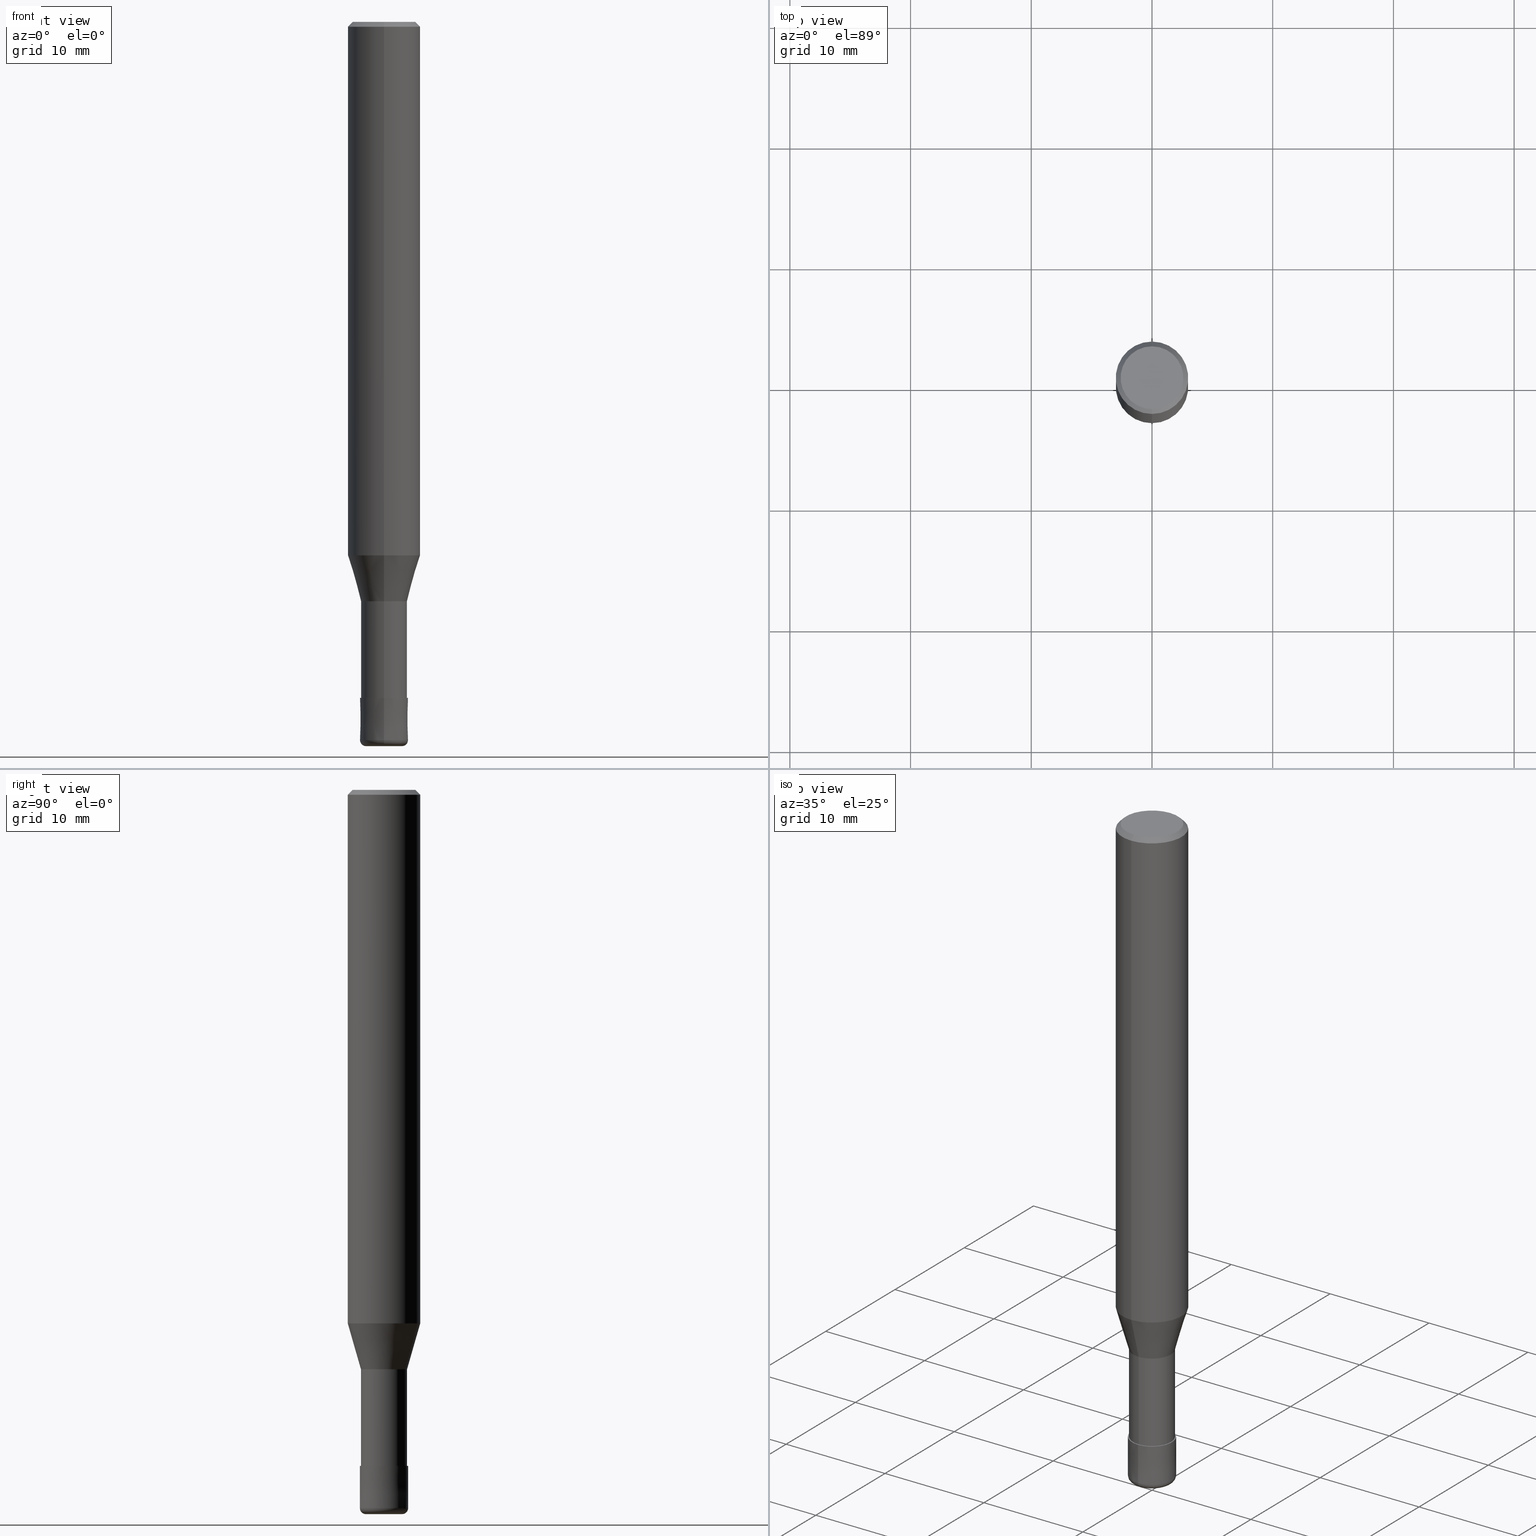
[diagram: canonical four-view strip — front | top / right | iso, engineering-drawing reading convention]
A machine part, canonical four-view strip (front | top / right | iso — engineering-drawing reading convention). The complete STEP part file that produces these views, byte-faithful:
ISO-10303-21;
HEADER;
FILE_DESCRIPTION(('no description'),'unknown implementation level');
FILE_NAME('CRRS4040-05-12-Huellk.stp','  ',('CIMSOURCE GmbH'),('CADClick - KiM GmbH - www.kimweb.de'),'unknown preprocess','ACIS','unknown authorization');
FILE_SCHEMA(('automotive_design'));
ENDSEC;
DATA;
#1=MECHANICAL_DESIGN_GEOMETRIC_PRESENTATION_REPRESENTATION(' ',(#14,#15,#16,#17,#18,#19,#20,#21,#22,#23,#24,#25,#26,#27,#28,#29,#30,#31,#32,#33,#34,#35,#36,#37,#38,#39,#40,#41,#42,#43,#44,#45,#46,#47,#48,#49,#50,#51,#52,#53,#54,#55,#56,#57,#58,#59,#60,#61,#62,#63,#64,#65,#66,#67,#68,#69,#70,#71,#72,#73,#74,#75,#76,#77,#78,#79,#80),#10);
#2=PRODUCT_DEFINITION_CONTEXT('',#81,'design');
#3=APPLICATION_PROTOCOL_DEFINITION('INTERNATIONAL STANDARD','automotive_design',1994,#81);
#4=PRODUCT_CATEGORY_RELATIONSHIP('NONE','NONE',#82,#83);
#5=SHAPE_DEFINITION_REPRESENTATION(#84,#85);
#6=PRODUCT_DEFINITION_CONTEXT('',#86,'design');
#7=APPLICATION_PROTOCOL_DEFINITION('INTERNATIONAL STANDARD','automotive_design',1994,#86);
#8=PRODUCT_CATEGORY_RELATIONSHIP('NONE','NONE',#87,#88);
#9=SHAPE_DEFINITION_REPRESENTATION(#89,#90);
#10= (GEOMETRIC_REPRESENTATION_CONTEXT(3)GLOBAL_UNCERTAINTY_ASSIGNED_CONTEXT((#93))GLOBAL_UNIT_ASSIGNED_CONTEXT((#95,#96,#97))REPRESENTATION_CONTEXT('NONE','WORKSPACE'));
#14=STYLED_ITEM('',(#99),#100);
#15=STYLED_ITEM('',(#101),#102);
#16=STYLED_ITEM('',(#103),#104);
#17=STYLED_ITEM('',(#105),#106);
#18=STYLED_ITEM('',(#107),#108);
#19=STYLED_ITEM('',(#109),#110);
#20=STYLED_ITEM('',(#111),#112);
#21=STYLED_ITEM('',(#113),#114);
#22=STYLED_ITEM('',(#115),#116);
#23=STYLED_ITEM('',(#117),#118);
#24=STYLED_ITEM('',(#119),#120);
#25=STYLED_ITEM('',(#121),#122);
#26=STYLED_ITEM('',(#123),#124);
#27=STYLED_ITEM('',(#125),#126);
#28=STYLED_ITEM('',(#127),#128);
#29=STYLED_ITEM('',(#129),#130);
#30=STYLED_ITEM('',(#131),#132);
#31=STYLED_ITEM('',(#133),#134);
#32=STYLED_ITEM('',(#135),#136);
#33=STYLED_ITEM('',(#137),#138);
#34=STYLED_ITEM('',(#139),#140);
#35=STYLED_ITEM('',(#141),#142);
#36=STYLED_ITEM('',(#143),#144);
#37=STYLED_ITEM('',(#145),#146);
#38=STYLED_ITEM('',(#147),#148);
#39=STYLED_ITEM('',(#149),#150);
#40=STYLED_ITEM('',(#151),#152);
#41=STYLED_ITEM('',(#153),#154);
#42=STYLED_ITEM('',(#155),#156);
#43=STYLED_ITEM('',(#157),#158);
#44=STYLED_ITEM('',(#159),#160);
#45=STYLED_ITEM('',(#161),#162);
#46=STYLED_ITEM('',(#163),#164);
#47=STYLED_ITEM('',(#165),#166);
#48=STYLED_ITEM('',(#167),#168);
#49=STYLED_ITEM('',(#169),#170);
#50=STYLED_ITEM('',(#171),#172);
#51=STYLED_ITEM('',(#173),#174);
#52=STYLED_ITEM('',(#175),#176);
#53=STYLED_ITEM('',(#177),#178);
#54=STYLED_ITEM('',(#179),#180);
#55=STYLED_ITEM('',(#181),#182);
#56=STYLED_ITEM('',(#183),#184);
#57=STYLED_ITEM('',(#185),#186);
#58=STYLED_ITEM('',(#187),#188);
#59=STYLED_ITEM('',(#189),#190);
#60=STYLED_ITEM('',(#191),#192);
#61=STYLED_ITEM('',(#193),#194);
#62=STYLED_ITEM('',(#195),#196);
#63=STYLED_ITEM('',(#197),#198);
#64=STYLED_ITEM('',(#199),#200);
#65=STYLED_ITEM('',(#201),#202);
#66=STYLED_ITEM('',(#203),#204);
#67=STYLED_ITEM('',(#205),#206);
#68=STYLED_ITEM('',(#207),#208);
#69=STYLED_ITEM('',(#209),#210);
#70=STYLED_ITEM('',(#211),#212);
#71=STYLED_ITEM('',(#213),#214);
#72=STYLED_ITEM('',(#215),#216);
#73=STYLED_ITEM('',(#217),#218);
#74=STYLED_ITEM('',(#219),#220);
#75=STYLED_ITEM('',(#221),#222);
#76=STYLED_ITEM('',(#223),#224);
#77=STYLED_ITEM('',(#225),#226);
#78=STYLED_ITEM('',(#227),#228);
#79=STYLED_ITEM('',(#229),#230);
#80=STYLED_ITEM('',(#231),#232);
#81=APPLICATION_CONTEXT(' ');
#82=PRODUCT_CATEGORY('part','NONE');
#83=PRODUCT_RELATED_PRODUCT_CATEGORY('detail',' ',(#233));
#84=PRODUCT_DEFINITION_SHAPE('NONE','NONE',#234);
#85=ADVANCED_BREP_SHAPE_REPRESENTATION('1',(#184,#235),#10);
#86=APPLICATION_CONTEXT(' ');
#87=PRODUCT_CATEGORY('part','NONE');
#88=PRODUCT_RELATED_PRODUCT_CATEGORY('detail',' ',(#236));
#89=PRODUCT_DEFINITION_SHAPE('NONE','NONE',#237);
#90=ADVANCED_BREP_SHAPE_REPRESENTATION('2',(#138,#238),#10);
#93=UNCERTAINTY_MEASURE_WITH_UNIT(LENGTH_MEASURE(1.0E-006),#95,'','');
#95= (CONVERSION_BASED_UNIT('MILLIMETRE',#241)LENGTH_UNIT()NAMED_UNIT(#244));
#96= (NAMED_UNIT(#246)PLANE_ANGLE_UNIT()SI_UNIT($,.RADIAN.));
#97= (NAMED_UNIT(#246)SOLID_ANGLE_UNIT()SI_UNIT($,.STERADIAN.));
#99=PRESENTATION_STYLE_ASSIGNMENT((#252));
#100=EDGE_CURVE('',#194,#124,#253,.T.);
#101=PRESENTATION_STYLE_ASSIGNMENT((#254));
#102=VERTEX_POINT('',#255);
#103=PRESENTATION_STYLE_ASSIGNMENT((#256));
#104=EDGE_CURVE('',#216,#232,#257,.T.);
#105=PRESENTATION_STYLE_ASSIGNMENT((#258));
#106=ADVANCED_FACE('',(#259),#260,.T.);
#107=PRESENTATION_STYLE_ASSIGNMENT((#261));
#108=EDGE_CURVE('',#150,#116,#262,.T.);
#109=PRESENTATION_STYLE_ASSIGNMENT((#263));
#110=EDGE_CURVE('',#208,#142,#264,.T.);
#111=PRESENTATION_STYLE_ASSIGNMENT((#265));
#112=EDGE_CURVE('',#142,#208,#266,.T.);
#113=PRESENTATION_STYLE_ASSIGNMENT((#267));
#114=ADVANCED_FACE('',(#268),#269,.T.);
#115=PRESENTATION_STYLE_ASSIGNMENT((#270));
#116=VERTEX_POINT('',#271);
#117=PRESENTATION_STYLE_ASSIGNMENT((#272));
#118=EDGE_CURVE('',#126,#190,#273,.T.);
#119=PRESENTATION_STYLE_ASSIGNMENT((#274));
#120=VERTEX_POINT('',#275);
#121=PRESENTATION_STYLE_ASSIGNMENT((#276));
#122=ADVANCED_FACE('',(#277),#278,.T.);
#123=PRESENTATION_STYLE_ASSIGNMENT((#279));
#124=VERTEX_POINT('',#280);
#125=PRESENTATION_STYLE_ASSIGNMENT((#281));
#126=VERTEX_POINT('',#282);
#127=PRESENTATION_STYLE_ASSIGNMENT((#283));
#128=EDGE_CURVE('',#116,#150,#284,.T.);
#129=PRESENTATION_STYLE_ASSIGNMENT((#285));
#130=VERTEX_POINT('',#286);
#131=PRESENTATION_STYLE_ASSIGNMENT((#287));
#132=EDGE_CURVE('',#126,#120,#288,.T.);
#133=PRESENTATION_STYLE_ASSIGNMENT((#289));
#134=VERTEX_POINT('',#290);
#135=PRESENTATION_STYLE_ASSIGNMENT((#291));
#136=ADVANCED_FACE('',(#292),#293,.T.);
#137=PRESENTATION_STYLE_ASSIGNMENT((#294));
#138=MANIFOLD_SOLID_BREP('2',#295);
#139=PRESENTATION_STYLE_ASSIGNMENT((#296));
#140=EDGE_CURVE('',#190,#182,#297,.T.);
#141=PRESENTATION_STYLE_ASSIGNMENT((#298));
#142=VERTEX_POINT('',#299);
#143=PRESENTATION_STYLE_ASSIGNMENT((#300));
#144=ADVANCED_FACE('',(#301),#302,.T.);
#145=PRESENTATION_STYLE_ASSIGNMENT((#303));
#146=EDGE_CURVE('',#182,#120,#304,.T.);
#147=PRESENTATION_STYLE_ASSIGNMENT((#305));
#148=ADVANCED_FACE('',(#306),#307,.T.);
#149=PRESENTATION_STYLE_ASSIGNMENT((#308));
#150=VERTEX_POINT('',#309);
#151=PRESENTATION_STYLE_ASSIGNMENT((#310));
#152=EDGE_CURVE('',#130,#172,#311,.T.);
#153=PRESENTATION_STYLE_ASSIGNMENT((#312));
#154=VERTEX_POINT('',#313);
#155=PRESENTATION_STYLE_ASSIGNMENT((#314));
#156=ADVANCED_FACE('',(#315),#316,.T.);
#157=PRESENTATION_STYLE_ASSIGNMENT((#317));
#158=ADVANCED_FACE('',(#318),#319,.T.);
#159=PRESENTATION_STYLE_ASSIGNMENT((#320));
#160=EDGE_CURVE('',#120,#126,#321,.T.);
#161=PRESENTATION_STYLE_ASSIGNMENT((#322));
#162=EDGE_CURVE('',#172,#130,#323,.T.);
#163=PRESENTATION_STYLE_ASSIGNMENT((#324));
#164=EDGE_CURVE('',#124,#194,#325,.T.);
#165=PRESENTATION_STYLE_ASSIGNMENT((#326));
#166=EDGE_CURVE('',#150,#178,#327,.T.);
#167=PRESENTATION_STYLE_ASSIGNMENT((#328));
#168=EDGE_CURVE('',#232,#216,#329,.T.);
#169=PRESENTATION_STYLE_ASSIGNMENT((#330));
#170=ADVANCED_FACE('',(#331),#332,.T.);
#171=PRESENTATION_STYLE_ASSIGNMENT((#333));
#172=VERTEX_POINT('',#334);
#173=PRESENTATION_STYLE_ASSIGNMENT((#335));
#174=EDGE_CURVE('',#208,#130,#336,.T.);
#175=PRESENTATION_STYLE_ASSIGNMENT((#337));
#176=EDGE_CURVE('',#102,#154,#338,.T.);
#177=PRESENTATION_STYLE_ASSIGNMENT((#339));
#178=VERTEX_POINT('',#340);
#179=PRESENTATION_STYLE_ASSIGNMENT((#341));
#180=EDGE_CURVE('',#190,#154,#342,.T.);
#181=PRESENTATION_STYLE_ASSIGNMENT((#343));
#182=VERTEX_POINT('',#344);
#183=PRESENTATION_STYLE_ASSIGNMENT((#345));
#184=MANIFOLD_SOLID_BREP('1',#346);
#185=PRESENTATION_STYLE_ASSIGNMENT((#347));
#186=ADVANCED_FACE('',(#348),#349,.T.);
#187=PRESENTATION_STYLE_ASSIGNMENT((#350));
#188=EDGE_CURVE('',#134,#124,#351,.T.);
#189=PRESENTATION_STYLE_ASSIGNMENT((#352));
#190=VERTEX_POINT('',#353);
#191=PRESENTATION_STYLE_ASSIGNMENT((#354));
#192=EDGE_CURVE('',#154,#102,#355,.T.);
#193=PRESENTATION_STYLE_ASSIGNMENT((#356));
#194=VERTEX_POINT('',#357);
#195=PRESENTATION_STYLE_ASSIGNMENT((#358));
#196=EDGE_CURVE('',#194,#178,#359,.T.);
#197=PRESENTATION_STYLE_ASSIGNMENT((#360));
#198=ADVANCED_FACE('',(#361),#362,.T.);
#199=PRESENTATION_STYLE_ASSIGNMENT((#363));
#200=EDGE_CURVE('',#102,#182,#364,.T.);
#201=PRESENTATION_STYLE_ASSIGNMENT((#365));
#202=ADVANCED_FACE('',(#366),#367,.T.);
#203=PRESENTATION_STYLE_ASSIGNMENT((#368));
#204=EDGE_CURVE('',#134,#178,#369,.T.);
#205=PRESENTATION_STYLE_ASSIGNMENT((#370));
#206=EDGE_CURVE('',#178,#134,#371,.T.);
#207=PRESENTATION_STYLE_ASSIGNMENT((#372));
#208=VERTEX_POINT('',#373);
#209=PRESENTATION_STYLE_ASSIGNMENT((#374));
#210=EDGE_CURVE('',#216,#208,#375,.T.);
#211=PRESENTATION_STYLE_ASSIGNMENT((#376));
#212=EDGE_CURVE('',#134,#116,#377,.T.);
#213=PRESENTATION_STYLE_ASSIGNMENT((#378));
#214=ADVANCED_FACE('',(#379),#380,.T.);
#215=PRESENTATION_STYLE_ASSIGNMENT((#381));
#216=VERTEX_POINT('',#382);
#217=PRESENTATION_STYLE_ASSIGNMENT((#383));
#218=ADVANCED_FACE('',(#384),#385,.T.);
#219=PRESENTATION_STYLE_ASSIGNMENT((#386));
#220=EDGE_CURVE('',#182,#190,#387,.T.);
#221=PRESENTATION_STYLE_ASSIGNMENT((#388));
#222=ADVANCED_FACE('',(#389),#390,.T.);
#223=PRESENTATION_STYLE_ASSIGNMENT((#391));
#224=EDGE_CURVE('',#142,#232,#392,.T.);
#225=PRESENTATION_STYLE_ASSIGNMENT((#393));
#226=EDGE_CURVE('',#172,#142,#394,.T.);
#227=PRESENTATION_STYLE_ASSIGNMENT((#395));
#228=ADVANCED_FACE('',(#396,#397),#398,.T.);
#229=PRESENTATION_STYLE_ASSIGNMENT((#399));
#230=ADVANCED_FACE('',(#400),#401,.T.);
#231=PRESENTATION_STYLE_ASSIGNMENT((#402));
#232=VERTEX_POINT('',#403);
#233=PRODUCT('1','1','PART-1-DESC',(#404));
#234=PRODUCT_DEFINITION('NONE','NONE',#405,#2);
#235=AXIS2_PLACEMENT_3D('',#406,#407,#408);
#236=PRODUCT('2','2','PART-2-DESC',(#409));
#237=PRODUCT_DEFINITION('NONE','NONE',#410,#6);
#238=AXIS2_PLACEMENT_3D('',#411,#412,#413);
#241=LENGTH_MEASURE_WITH_UNIT(LENGTH_MEASURE(1.0),#414);
#244=DIMENSIONAL_EXPONENTS(1.0,0.0,0.0,0.0,0.0,0.0,0.0);
#246=DIMENSIONAL_EXPONENTS(0.0,0.0,0.0,0.0,0.0,0.0,0.0);
#252=CURVE_STYLE('',#415,POSITIVE_LENGTH_MEASURE(1.0E-006),#416);
#253=CIRCLE('',#417,1.5);
#254=POINT_STYLE(' ',#418,POSITIVE_LENGTH_MEASURE(1.0E-006),#419);
#255=CARTESIAN_POINT('',(2.33893690548305E-016,-1.90995,-56.0));
#256=CURVE_STYLE('',#420,POSITIVE_LENGTH_MEASURE(1.0E-006),#421);
#257=CIRCLE('',#422,3.0);
#258=SURFACE_STYLE_USAGE(.BOTH.,#423);
#259=FACE_OUTER_BOUND('',#424,.T.);
#260=CONICAL_SURFACE('',#425,2.8,0.78539816339745);
#261=CURVE_STYLE('',#426,POSITIVE_LENGTH_MEASURE(1.0E-006),#427);
#262=CIRCLE('',#428,1.9999);
#263=CURVE_STYLE('',#429,POSITIVE_LENGTH_MEASURE(1.0E-006),#430);
#264=CIRCLE('',#431,3.0);
#265=CURVE_STYLE('',#432,POSITIVE_LENGTH_MEASURE(1.0E-006),#433);
#266=CIRCLE('',#434,3.0);
#267=SURFACE_STYLE_USAGE(.BOTH.,#435);
#268=FACE_OUTER_BOUND('',#436,.T.);
#269=CONICAL_SURFACE('',#437,1.99995,2.85714285636509E-005);
#270=POINT_STYLE(' ',#438,POSITIVE_LENGTH_MEASURE(1.0E-006),#439);
#271=CARTESIAN_POINT('',(2.44909024700937E-016,-1.9999,-56.0));
#272=CURVE_STYLE('',#440,POSITIVE_LENGTH_MEASURE(1.0E-006),#441);
#273=LINE('',#442,#443);
#274=POINT_STYLE(' ',#444,POSITIVE_LENGTH_MEASURE(1.0E-006),#445);
#275=CARTESIAN_POINT('',(3.67375783114944E-016,-2.99995,-44.199));
#276=SURFACE_STYLE_USAGE(.BOTH.,#446);
#277=FACE_OUTER_BOUND('',#447,.T.);
#278=PLANE('',#448);
#279=POINT_STYLE(' ',#449,POSITIVE_LENGTH_MEASURE(1.0E-006),#450);
#280=CARTESIAN_POINT('',(1.83690953073357E-016,-1.5,-60.0));
#281=POINT_STYLE(' ',#451,POSITIVE_LENGTH_MEASURE(1.0E-006),#452);
#282=CARTESIAN_POINT('',(0.0,2.99995,-44.199));
#283=CURVE_STYLE('',#453,POSITIVE_LENGTH_MEASURE(1.0E-006),#454);
#284=CIRCLE('',#455,1.9999);
#285=POINT_STYLE(' ',#456,POSITIVE_LENGTH_MEASURE(1.0E-006),#457);
#286=CARTESIAN_POINT('',(3.18397651993818E-016,-2.6,0.0));
#287=CURVE_STYLE('',#458,POSITIVE_LENGTH_MEASURE(1.0E-006),#459);
#288=CIRCLE('',#460,2.99995);
#289=POINT_STYLE(' ',#461,POSITIVE_LENGTH_MEASURE(1.0E-006),#462);
#290=CARTESIAN_POINT('',(2.44921270764475E-016,-2.0,-59.5));
#291=SURFACE_STYLE_USAGE(.BOTH.,#463);
#292=FACE_OUTER_BOUND('',#464,.T.);
#293=CONICAL_SURFACE('',#465,1.99995,2.85714285636509E-005);
#294=SURFACE_STYLE_USAGE(.BOTH.,#466);
#295=CLOSED_SHELL('',(#230,#136,#122,#114,#202,#170));
#296=CURVE_STYLE('',#467,POSITIVE_LENGTH_MEASURE(1.0E-006),#468);
#297=CIRCLE('',#469,1.90995);
#298=POINT_STYLE(' ',#470,POSITIVE_LENGTH_MEASURE(1.0E-006),#471);
#299=CARTESIAN_POINT('',(0.0,3.0,-0.399999999999999));
#300=SURFACE_STYLE_USAGE(.BOTH.,#472);
#301=FACE_OUTER_BOUND('',#473,.T.);
#302=CONICAL_SURFACE('',#474,2.45495,0.279272319969089);
#303=CURVE_STYLE('',#475,POSITIVE_LENGTH_MEASURE(1.0E-006),#476);
#304=LINE('',#477,#478);
#305=SURFACE_STYLE_USAGE(.BOTH.,#479);
#306=FACE_OUTER_BOUND('',#480,.T.);
#307=CYLINDRICAL_SURFACE('',#481,1.90995);
#308=POINT_STYLE(' ',#482,POSITIVE_LENGTH_MEASURE(1.0E-006),#483);
#309=CARTESIAN_POINT('',(0.0,1.9999,-56.0));
#310=CURVE_STYLE('',#484,POSITIVE_LENGTH_MEASURE(1.0E-006),#485);
#311=CIRCLE('',#486,2.6);
#312=POINT_STYLE(' ',#487,POSITIVE_LENGTH_MEASURE(1.0E-006),#488);
#313=CARTESIAN_POINT('',(0.0,1.90995,-56.0));
#314=SURFACE_STYLE_USAGE(.BOTH.,#489);
#315=FACE_OUTER_BOUND('',#490,.T.);
#316=PLANE('',#491);
#317=SURFACE_STYLE_USAGE(.BOTH.,#492);
#318=FACE_OUTER_BOUND('',#493,.T.);
#319=CYLINDRICAL_SURFACE('',#494,3.0);
#320=CURVE_STYLE('',#495,POSITIVE_LENGTH_MEASURE(1.0E-006),#496);
#321=CIRCLE('',#497,2.99995);
#322=CURVE_STYLE('',#498,POSITIVE_LENGTH_MEASURE(1.0E-006),#499);
#323=CIRCLE('',#500,2.6);
#324=CURVE_STYLE('',#501,POSITIVE_LENGTH_MEASURE(1.0E-006),#502);
#325=CIRCLE('',#503,1.5);
#326=CURVE_STYLE('',#504,POSITIVE_LENGTH_MEASURE(1.0E-006),#505);
#327=LINE('',#506,#507);
#328=CURVE_STYLE('',#508,POSITIVE_LENGTH_MEASURE(1.0E-006),#509);
#329=CIRCLE('',#510,3.0);
#330=SURFACE_STYLE_USAGE(.BOTH.,#511);
#331=FACE_OUTER_BOUND('',#512,.T.);
#332=PLANE('',#513);
#333=POINT_STYLE(' ',#514,POSITIVE_LENGTH_MEASURE(1.0E-006),#515);
#334=CARTESIAN_POINT('',(0.0,2.6,0.0));
#335=CURVE_STYLE('',#516,POSITIVE_LENGTH_MEASURE(1.0E-006),#517);
#336=LINE('',#518,#519);
#337=CURVE_STYLE('',#520,POSITIVE_LENGTH_MEASURE(1.0E-006),#521);
#338=CIRCLE('',#522,1.90995);
#339=POINT_STYLE(' ',#523,POSITIVE_LENGTH_MEASURE(1.0E-006),#524);
#340=CARTESIAN_POINT('',(0.0,2.0,-59.5));
#341=CURVE_STYLE('',#525,POSITIVE_LENGTH_MEASURE(1.0E-006),#526);
#342=LINE('',#527,#528);
#343=POINT_STYLE(' ',#529,POSITIVE_LENGTH_MEASURE(1.0E-006),#530);
#344=CARTESIAN_POINT('',(2.33893690548305E-016,-1.90995,-48.0));
#345=SURFACE_STYLE_USAGE(.BOTH.,#531);
#346=CLOSED_SHELL('',(#148,#214,#158,#106,#228,#222,#186,#218,#144,#198,#156));
#347=SURFACE_STYLE_USAGE(.BOTH.,#532);
#348=FACE_OUTER_BOUND('',#533,.T.);
#349=CONICAL_SURFACE('',#534,2.8,0.78539816339745);
#350=CURVE_STYLE('',#535,POSITIVE_LENGTH_MEASURE(1.0E-006),#536);
#351=CIRCLE('',#537,0.500000000000001);
#352=POINT_STYLE(' ',#538,POSITIVE_LENGTH_MEASURE(1.0E-006),#539);
#353=CARTESIAN_POINT('',(0.0,1.90995,-48.0));
#354=CURVE_STYLE('',#540,POSITIVE_LENGTH_MEASURE(1.0E-006),#541);
#355=CIRCLE('',#542,1.90995);
#356=POINT_STYLE(' ',#543,POSITIVE_LENGTH_MEASURE(1.0E-006),#544);
#357=CARTESIAN_POINT('',(0.0,1.5,-60.0));
#358=CURVE_STYLE('',#545,POSITIVE_LENGTH_MEASURE(1.0E-006),#546);
#359=CIRCLE('',#547,0.500000000000001);
#360=SURFACE_STYLE_USAGE(.BOTH.,#548);
#361=FACE_OUTER_BOUND('',#549,.T.);
#362=CYLINDRICAL_SURFACE('',#550,1.90995);
#363=CURVE_STYLE('',#551,POSITIVE_LENGTH_MEASURE(1.0E-006),#552);
#364=LINE('',#553,#554);
#365=SURFACE_STYLE_USAGE(.BOTH.,#555);
#366=FACE_OUTER_BOUND('',#556,.T.);
#367=TOROIDAL_SURFACE('',#557,1.5,0.500000000000001);
#368=CURVE_STYLE('',#558,POSITIVE_LENGTH_MEASURE(1.0E-006),#559);
#369=CIRCLE('',#560,2.0);
#370=CURVE_STYLE('',#561,POSITIVE_LENGTH_MEASURE(1.0E-006),#562);
#371=CIRCLE('',#563,2.0);
#372=POINT_STYLE(' ',#564,POSITIVE_LENGTH_MEASURE(1.0E-006),#565);
#373=CARTESIAN_POINT('',(3.67381906146713E-016,-3.0,-0.399999999999999));
#374=CURVE_STYLE('',#566,POSITIVE_LENGTH_MEASURE(1.0E-006),#567);
#375=LINE('',#568,#569);
#376=CURVE_STYLE('',#570,POSITIVE_LENGTH_MEASURE(1.0E-006),#571);
#377=LINE('',#572,#573);
#378=SURFACE_STYLE_USAGE(.BOTH.,#574);
#379=FACE_OUTER_BOUND('',#575,.T.);
#380=CONICAL_SURFACE('',#576,2.45495,0.279272319969089);
#381=POINT_STYLE(' ',#577,POSITIVE_LENGTH_MEASURE(1.0E-006),#578);
#382=CARTESIAN_POINT('',(3.67381906146713E-016,-3.0,-44.199));
#383=SURFACE_STYLE_USAGE(.BOTH.,#579);
#384=FACE_OUTER_BOUND('',#580,.T.);
#385=CYLINDRICAL_SURFACE('',#581,3.0);
#386=CURVE_STYLE('',#582,POSITIVE_LENGTH_MEASURE(1.0E-006),#583);
#387=CIRCLE('',#584,1.90995);
#388=SURFACE_STYLE_USAGE(.BOTH.,#585);
#389=FACE_OUTER_BOUND('',#586,.T.);
#390=PLANE('',#587);
#391=CURVE_STYLE('',#588,POSITIVE_LENGTH_MEASURE(1.0E-006),#589);
#392=LINE('',#590,#591);
#393=CURVE_STYLE('',#592,POSITIVE_LENGTH_MEASURE(1.0E-006),#593);
#394=LINE('',#594,#595);
#395=SURFACE_STYLE_USAGE(.BOTH.,#596);
#396=FACE_OUTER_BOUND('',#597,.T.);
#397=FACE_BOUND('',#598,.T.);
#398=PLANE('',#599);
#399=SURFACE_STYLE_USAGE(.BOTH.,#600);
#400=FACE_OUTER_BOUND('',#601,.T.);
#401=TOROIDAL_SURFACE('',#602,1.5,0.500000000000001);
#402=POINT_STYLE(' ',#603,POSITIVE_LENGTH_MEASURE(1.0E-006),#604);
#403=CARTESIAN_POINT('',(0.0,3.0,-44.199));
#404=PRODUCT_CONTEXT('',#81,'mechanical');
#405=PRODUCT_DEFINITION_FORMATION_WITH_SPECIFIED_SOURCE(' ','NONE',#233,.NOT_KNOWN.);
#406=CARTESIAN_POINT('',(0.0,0.0,0.0));
#407=DIRECTION('',(0.0,0.0,1.0));
#408=DIRECTION('',(1.0,0.0,0.0));
#409=PRODUCT_CONTEXT('',#86,'mechanical');
#410=PRODUCT_DEFINITION_FORMATION_WITH_SPECIFIED_SOURCE(' ','NONE',#236,.NOT_KNOWN.);
#411=CARTESIAN_POINT('',(0.0,0.0,0.0));
#412=DIRECTION('',(0.0,0.0,1.0));
#413=DIRECTION('',(1.0,0.0,0.0));
#414= (NAMED_UNIT(#244)LENGTH_UNIT()SI_UNIT(.MILLI.,.METRE.));
#415=DRAUGHTING_PRE_DEFINED_CURVE_FONT('continuous');
#416=COLOUR_RGB('',0.800000011920929,0.800000011920929,0.800000011920929);
#417=AXIS2_PLACEMENT_3D('',#606,#607,#608);
#418=PRE_DEFINED_MARKER('');
#419=COLOUR_RGB('',0.498039215803146,0.498039215803146,0.498039215803146);
#420=DRAUGHTING_PRE_DEFINED_CURVE_FONT('continuous');
#421=COLOUR_RGB('',0.498039215803146,0.498039215803146,0.498039215803146);
#422=AXIS2_PLACEMENT_3D('',#609,#610,#611);
#423=SURFACE_SIDE_STYLE('',(#612));
#424=EDGE_LOOP('',(#613,#614,#615,#616));
#425=AXIS2_PLACEMENT_3D('',#617,#618,#619);
#426=DRAUGHTING_PRE_DEFINED_CURVE_FONT('continuous');
#427=COLOUR_RGB('',0.800000011920929,0.800000011920929,0.800000011920929);
#428=AXIS2_PLACEMENT_3D('',#620,#621,#622);
#429=DRAUGHTING_PRE_DEFINED_CURVE_FONT('continuous');
#430=COLOUR_RGB('',0.498039215803146,0.498039215803146,0.498039215803146);
#431=AXIS2_PLACEMENT_3D('',#623,#624,#625);
#432=DRAUGHTING_PRE_DEFINED_CURVE_FONT('continuous');
#433=COLOUR_RGB('',0.498039215803146,0.498039215803146,0.498039215803146);
#434=AXIS2_PLACEMENT_3D('',#626,#627,#628);
#435=SURFACE_SIDE_STYLE('',(#629));
#436=EDGE_LOOP('',(#630,#631,#632,#633));
#437=AXIS2_PLACEMENT_3D('',#634,#635,#636);
#438=PRE_DEFINED_MARKER('');
#439=COLOUR_RGB('',0.800000011920929,0.800000011920929,0.800000011920929);
#440=DRAUGHTING_PRE_DEFINED_CURVE_FONT('continuous');
#441=COLOUR_RGB('',0.498039215803146,0.498039215803146,0.498039215803146);
#442=CARTESIAN_POINT('',(-3.00634736831625E-016,2.45495,-46.0995));
#443=VECTOR('',#637,1.0);
#444=PRE_DEFINED_MARKER('');
#445=COLOUR_RGB('',0.498039215803146,0.498039215803146,0.498039215803146);
#446=SURFACE_SIDE_STYLE('',(#638));
#447=EDGE_LOOP('',(#639,#640));
#448=AXIS2_PLACEMENT_3D('',#641,#642,#643);
#449=PRE_DEFINED_MARKER('');
#450=COLOUR_RGB('',0.800000011920929,0.800000011920929,0.800000011920929);
#451=PRE_DEFINED_MARKER('');
#452=COLOUR_RGB('',0.498039215803146,0.498039215803146,0.498039215803146);
#453=DRAUGHTING_PRE_DEFINED_CURVE_FONT('continuous');
#454=COLOUR_RGB('',0.800000011920929,0.800000011920929,0.800000011920929);
#455=AXIS2_PLACEMENT_3D('',#644,#645,#646);
#456=PRE_DEFINED_MARKER('');
#457=COLOUR_RGB('',0.498039215803146,0.498039215803146,0.498039215803146);
#458=DRAUGHTING_PRE_DEFINED_CURVE_FONT('continuous');
#459=COLOUR_RGB('',0.498039215803146,0.498039215803146,0.498039215803146);
#460=AXIS2_PLACEMENT_3D('',#647,#648,#649);
#461=PRE_DEFINED_MARKER('');
#462=COLOUR_RGB('',0.800000011920929,0.800000011920929,0.800000011920929);
#463=SURFACE_SIDE_STYLE('',(#650));
#464=EDGE_LOOP('',(#651,#652,#653,#654));
#465=AXIS2_PLACEMENT_3D('',#655,#656,#657);
#466=SURFACE_SIDE_STYLE('',(#658));
#467=DRAUGHTING_PRE_DEFINED_CURVE_FONT('continuous');
#468=COLOUR_RGB('',0.498039215803146,0.498039215803146,0.498039215803146);
#469=AXIS2_PLACEMENT_3D('',#659,#660,#661);
#470=PRE_DEFINED_MARKER('');
#471=COLOUR_RGB('',0.498039215803146,0.498039215803146,0.498039215803146);
#472=SURFACE_SIDE_STYLE('',(#662));
#473=EDGE_LOOP('',(#663,#664,#665,#666));
#474=AXIS2_PLACEMENT_3D('',#667,#668,#669);
#475=DRAUGHTING_PRE_DEFINED_CURVE_FONT('continuous');
#476=COLOUR_RGB('',0.498039215803146,0.498039215803146,0.498039215803146);
#477=CARTESIAN_POINT('',(3.00634736831625E-016,-2.45495,-46.0995));
#478=VECTOR('',#670,1.0);
#479=SURFACE_SIDE_STYLE('',(#671));
#480=EDGE_LOOP('',(#672,#673,#674,#675));
#481=AXIS2_PLACEMENT_3D('',#676,#677,#678);
#482=PRE_DEFINED_MARKER('');
#483=COLOUR_RGB('',0.800000011920929,0.800000011920929,0.800000011920929);
#484=DRAUGHTING_PRE_DEFINED_CURVE_FONT('continuous');
#485=COLOUR_RGB('',0.498039215803146,0.498039215803146,0.498039215803146);
#486=AXIS2_PLACEMENT_3D('',#679,#680,#681);
#487=PRE_DEFINED_MARKER('');
#488=COLOUR_RGB('',0.498039215803146,0.498039215803146,0.498039215803146);
#489=SURFACE_SIDE_STYLE('',(#682));
#490=EDGE_LOOP('',(#683,#684));
#491=AXIS2_PLACEMENT_3D('',#685,#686,#687);
#492=SURFACE_SIDE_STYLE('',(#688));
#493=EDGE_LOOP('',(#689,#690,#691,#692));
#494=AXIS2_PLACEMENT_3D('',#693,#694,#695);
#495=DRAUGHTING_PRE_DEFINED_CURVE_FONT('continuous');
#496=COLOUR_RGB('',0.498039215803146,0.498039215803146,0.498039215803146);
#497=AXIS2_PLACEMENT_3D('',#696,#697,#698);
#498=DRAUGHTING_PRE_DEFINED_CURVE_FONT('continuous');
#499=COLOUR_RGB('',0.498039215803146,0.498039215803146,0.498039215803146);
#500=AXIS2_PLACEMENT_3D('',#699,#700,#701);
#501=DRAUGHTING_PRE_DEFINED_CURVE_FONT('continuous');
#502=COLOUR_RGB('',0.800000011920929,0.800000011920929,0.800000011920929);
#503=AXIS2_PLACEMENT_3D('',#702,#703,#704);
#504=DRAUGHTING_PRE_DEFINED_CURVE_FONT('continuous');
#505=COLOUR_RGB('',0.800000011920929,0.800000011920929,0.800000011920929);
#506=CARTESIAN_POINT('',(-2.44915147732706E-016,1.99995,-57.75));
#507=VECTOR('',#705,1.0);
#508=DRAUGHTING_PRE_DEFINED_CURVE_FONT('continuous');
#509=COLOUR_RGB('',0.498039215803146,0.498039215803146,0.498039215803146);
#510=AXIS2_PLACEMENT_3D('',#706,#707,#708);
#511=SURFACE_SIDE_STYLE('',(#709));
#512=EDGE_LOOP('',(#710,#711));
#513=AXIS2_PLACEMENT_3D('',#712,#713,#714);
#514=PRE_DEFINED_MARKER('');
#515=COLOUR_RGB('',0.498039215803146,0.498039215803146,0.498039215803146);
#516=DRAUGHTING_PRE_DEFINED_CURVE_FONT('continuous');
#517=COLOUR_RGB('',0.498039215803146,0.498039215803146,0.498039215803146);
#518=CARTESIAN_POINT('',(3.42889779070266E-016,-2.8,-0.200000000000003));
#519=VECTOR('',#715,1.0);
#520=DRAUGHTING_PRE_DEFINED_CURVE_FONT('continuous');
#521=COLOUR_RGB('',0.498039215803146,0.498039215803146,0.498039215803146);
#522=AXIS2_PLACEMENT_3D('',#716,#717,#718);
#523=PRE_DEFINED_MARKER('');
#524=COLOUR_RGB('',0.800000011920929,0.800000011920929,0.800000011920929);
#525=DRAUGHTING_PRE_DEFINED_CURVE_FONT('continuous');
#526=COLOUR_RGB('',0.498039215803146,0.498039215803146,0.498039215803146);
#527=CARTESIAN_POINT('',(-2.33893690548305E-016,1.90995,-52.0));
#528=VECTOR('',#719,1.0);
#529=PRE_DEFINED_MARKER('');
#530=COLOUR_RGB('',0.498039215803146,0.498039215803146,0.498039215803146);
#531=SURFACE_SIDE_STYLE('',(#720));
#532=SURFACE_SIDE_STYLE('',(#721));
#533=EDGE_LOOP('',(#722,#723,#724,#725));
#534=AXIS2_PLACEMENT_3D('',#726,#727,#728);
#535=DRAUGHTING_PRE_DEFINED_CURVE_FONT('continuous');
#536=COLOUR_RGB('',0.800000011920929,0.800000011920929,0.800000011920929);
#537=AXIS2_PLACEMENT_3D('',#729,#730,#731);
#538=PRE_DEFINED_MARKER('');
#539=COLOUR_RGB('',0.498039215803146,0.498039215803146,0.498039215803146);
#540=DRAUGHTING_PRE_DEFINED_CURVE_FONT('continuous');
#541=COLOUR_RGB('',0.498039215803146,0.498039215803146,0.498039215803146);
#542=AXIS2_PLACEMENT_3D('',#732,#733,#734);
#543=PRE_DEFINED_MARKER('');
#544=COLOUR_RGB('',0.800000011920929,0.800000011920929,0.800000011920929);
#545=DRAUGHTING_PRE_DEFINED_CURVE_FONT('continuous');
#546=COLOUR_RGB('',0.800000011920929,0.800000011920929,0.800000011920929);
#547=AXIS2_PLACEMENT_3D('',#735,#736,#737);
#548=SURFACE_SIDE_STYLE('',(#738));
#549=EDGE_LOOP('',(#739,#740,#741,#742));
#550=AXIS2_PLACEMENT_3D('',#743,#744,#745);
#551=DRAUGHTING_PRE_DEFINED_CURVE_FONT('continuous');
#552=COLOUR_RGB('',0.498039215803146,0.498039215803146,0.498039215803146);
#553=CARTESIAN_POINT('',(2.33893690548305E-016,-1.90995,-52.0));
#554=VECTOR('',#746,1.0);
#555=SURFACE_SIDE_STYLE('',(#747));
#556=EDGE_LOOP('',(#748,#749,#750,#751));
#557=AXIS2_PLACEMENT_3D('',#752,#753,#754);
#558=DRAUGHTING_PRE_DEFINED_CURVE_FONT('continuous');
#559=COLOUR_RGB('',0.800000011920929,0.800000011920929,0.800000011920929);
#560=AXIS2_PLACEMENT_3D('',#755,#756,#757);
#561=DRAUGHTING_PRE_DEFINED_CURVE_FONT('continuous');
#562=COLOUR_RGB('',0.800000011920929,0.800000011920929,0.800000011920929);
#563=AXIS2_PLACEMENT_3D('',#758,#759,#760);
#564=PRE_DEFINED_MARKER('');
#565=COLOUR_RGB('',0.498039215803146,0.498039215803146,0.498039215803146);
#566=DRAUGHTING_PRE_DEFINED_CURVE_FONT('continuous');
#567=COLOUR_RGB('',0.498039215803146,0.498039215803146,0.498039215803146);
#568=CARTESIAN_POINT('',(3.67381906146713E-016,-3.0,-22.2995));
#569=VECTOR('',#761,1.0);
#570=DRAUGHTING_PRE_DEFINED_CURVE_FONT('continuous');
#571=COLOUR_RGB('',0.800000011920929,0.800000011920929,0.800000011920929);
#572=CARTESIAN_POINT('',(2.44915147732706E-016,-1.99995,-57.75));
#573=VECTOR('',#762,1.0);
#574=SURFACE_SIDE_STYLE('',(#763));
#575=EDGE_LOOP('',(#764,#765,#766,#767));
#576=AXIS2_PLACEMENT_3D('',#768,#769,#770);
#577=PRE_DEFINED_MARKER('');
#578=COLOUR_RGB('',0.498039215803146,0.498039215803146,0.498039215803146);
#579=SURFACE_SIDE_STYLE('',(#771));
#580=EDGE_LOOP('',(#772,#773,#774,#775));
#581=AXIS2_PLACEMENT_3D('',#776,#777,#778);
#582=DRAUGHTING_PRE_DEFINED_CURVE_FONT('continuous');
#583=COLOUR_RGB('',0.498039215803146,0.498039215803146,0.498039215803146);
#584=AXIS2_PLACEMENT_3D('',#779,#780,#781);
#585=SURFACE_SIDE_STYLE('',(#782));
#586=EDGE_LOOP('',(#783,#784));
#587=AXIS2_PLACEMENT_3D('',#785,#786,#787);
#588=DRAUGHTING_PRE_DEFINED_CURVE_FONT('continuous');
#589=COLOUR_RGB('',0.498039215803146,0.498039215803146,0.498039215803146);
#590=CARTESIAN_POINT('',(-3.67381906146713E-016,3.0,-22.2995));
#591=VECTOR('',#788,1.0);
#592=DRAUGHTING_PRE_DEFINED_CURVE_FONT('continuous');
#593=COLOUR_RGB('',0.498039215803146,0.498039215803146,0.498039215803146);
#594=CARTESIAN_POINT('',(-3.42889779070266E-016,2.8,-0.200000000000003));
#595=VECTOR('',#789,1.0);
#596=SURFACE_SIDE_STYLE('',(#790));
#597=EDGE_LOOP('',(#791,#792));
#598=EDGE_LOOP('',(#793,#794));
#599=AXIS2_PLACEMENT_3D('',#795,#796,#797);
#600=SURFACE_SIDE_STYLE('',(#798));
#601=EDGE_LOOP('',(#799,#800,#801,#802));
#602=AXIS2_PLACEMENT_3D('',#803,#804,#805);
#603=PRE_DEFINED_MARKER('');
#604=COLOUR_RGB('',0.498039215803146,0.498039215803146,0.498039215803146);
#606=CARTESIAN_POINT('',(0.0,0.0,-60.0));
#607=DIRECTION('',(0.0,0.0,-1.0));
#608=DIRECTION('',(0.0,1.0,0.0));
#609=CARTESIAN_POINT('',(0.0,0.0,-44.199));
#610=DIRECTION('',(0.0,0.0,-1.0));
#611=DIRECTION('',(0.0,1.0,0.0));
#612=SURFACE_STYLE_FILL_AREA(#806);
#613=ORIENTED_EDGE('',*,*,#226,.F.);
#614=ORIENTED_EDGE('',*,*,#162,.T.);
#615=ORIENTED_EDGE('',*,*,#174,.F.);
#616=ORIENTED_EDGE('',*,*,#112,.F.);
#617=CARTESIAN_POINT('',(0.0,0.0,-0.200000000000003));
#618=DIRECTION('',(0.0,-0.0,-1.0));
#619=DIRECTION('',(0.0,1.0,0.0));
#620=CARTESIAN_POINT('',(0.0,0.0,-56.0));
#621=DIRECTION('',(0.0,0.0,-1.0));
#622=DIRECTION('',(0.0,1.0,0.0));
#623=CARTESIAN_POINT('',(0.0,0.0,-0.399999999999999));
#624=DIRECTION('',(0.0,0.0,-1.0));
#625=DIRECTION('',(0.0,1.0,0.0));
#626=CARTESIAN_POINT('',(0.0,0.0,-0.399999999999999));
#627=DIRECTION('',(0.0,0.0,-1.0));
#628=DIRECTION('',(0.0,1.0,0.0));
#629=SURFACE_STYLE_FILL_AREA(#807);
#630=ORIENTED_EDGE('',*,*,#166,.T.);
#631=ORIENTED_EDGE('',*,*,#204,.F.);
#632=ORIENTED_EDGE('',*,*,#212,.T.);
#633=ORIENTED_EDGE('',*,*,#128,.T.);
#634=CARTESIAN_POINT('',(0.0,0.0,-57.75));
#635=DIRECTION('',(0.0,-0.0,-1.0));
#636=DIRECTION('',(0.0,1.0,0.0));
#637=DIRECTION('',(3.37570376370609E-017,-0.275656234607102,-0.961256282331738));
#638=SURFACE_STYLE_FILL_AREA(#808);
#639=ORIENTED_EDGE('',*,*,#108,.F.);
#640=ORIENTED_EDGE('',*,*,#128,.F.);
#641=CARTESIAN_POINT('',(0.0,0.99995,-56.0));
#642=DIRECTION('',(-0.0,0.0,1.0));
#643=DIRECTION('',(0.0,-1.0,0.0));
#644=CARTESIAN_POINT('',(0.0,0.0,-56.0));
#645=DIRECTION('',(0.0,0.0,-1.0));
#646=DIRECTION('',(0.0,1.0,0.0));
#647=CARTESIAN_POINT('',(0.0,0.0,-44.199));
#648=DIRECTION('',(0.0,0.0,-1.0));
#649=DIRECTION('',(0.0,1.0,0.0));
#650=SURFACE_STYLE_FILL_AREA(#809);
#651=ORIENTED_EDGE('',*,*,#166,.F.);
#652=ORIENTED_EDGE('',*,*,#108,.T.);
#653=ORIENTED_EDGE('',*,*,#212,.F.);
#654=ORIENTED_EDGE('',*,*,#206,.F.);
#655=CARTESIAN_POINT('',(0.0,0.0,-57.75));
#656=DIRECTION('',(0.0,-0.0,-1.0));
#657=DIRECTION('',(0.0,1.0,0.0));
#658=SURFACE_STYLE_FILL_AREA(#810);
#659=CARTESIAN_POINT('',(0.0,0.0,-48.0));
#660=DIRECTION('',(0.0,0.0,-1.0));
#661=DIRECTION('',(0.0,1.0,0.0));
#662=SURFACE_STYLE_FILL_AREA(#811);
#663=ORIENTED_EDGE('',*,*,#118,.T.);
#664=ORIENTED_EDGE('',*,*,#220,.F.);
#665=ORIENTED_EDGE('',*,*,#146,.T.);
#666=ORIENTED_EDGE('',*,*,#160,.T.);
#667=CARTESIAN_POINT('',(0.0,0.0,-46.0995));
#668=DIRECTION('',(-0.0,-0.0,1.0));
#669=DIRECTION('',(0.0,1.0,0.0));
#670=DIRECTION('',(3.37570376370609E-017,-0.275656234607102,0.961256282331738));
#671=SURFACE_STYLE_FILL_AREA(#812);
#672=ORIENTED_EDGE('',*,*,#180,.F.);
#673=ORIENTED_EDGE('',*,*,#140,.T.);
#674=ORIENTED_EDGE('',*,*,#200,.F.);
#675=ORIENTED_EDGE('',*,*,#192,.F.);
#676=CARTESIAN_POINT('',(0.0,0.0,-52.0));
#677=DIRECTION('',(-0.0,-0.0,1.0));
#678=DIRECTION('',(0.0,1.0,0.0));
#679=CARTESIAN_POINT('',(0.0,0.0,0.0));
#680=DIRECTION('',(0.0,0.0,-1.0));
#681=DIRECTION('',(0.0,1.0,0.0));
#682=SURFACE_STYLE_FILL_AREA(#813);
#683=ORIENTED_EDGE('',*,*,#192,.T.);
#684=ORIENTED_EDGE('',*,*,#176,.T.);
#685=CARTESIAN_POINT('',(0.0,0.954975,-56.0));
#686=DIRECTION('',(0.0,0.0,-1.0));
#687=DIRECTION('',(0.0,1.0,0.0));
#688=SURFACE_STYLE_FILL_AREA(#814);
#689=ORIENTED_EDGE('',*,*,#224,.F.);
#690=ORIENTED_EDGE('',*,*,#112,.T.);
#691=ORIENTED_EDGE('',*,*,#210,.F.);
#692=ORIENTED_EDGE('',*,*,#168,.F.);
#693=CARTESIAN_POINT('',(0.0,0.0,-22.2995));
#694=DIRECTION('',(-0.0,-0.0,1.0));
#695=DIRECTION('',(0.0,1.0,0.0));
#696=CARTESIAN_POINT('',(0.0,0.0,-44.199));
#697=DIRECTION('',(0.0,0.0,-1.0));
#698=DIRECTION('',(0.0,1.0,0.0));
#699=CARTESIAN_POINT('',(0.0,0.0,0.0));
#700=DIRECTION('',(0.0,0.0,-1.0));
#701=DIRECTION('',(0.0,1.0,0.0));
#702=CARTESIAN_POINT('',(0.0,0.0,-60.0));
#703=DIRECTION('',(0.0,0.0,-1.0));
#704=DIRECTION('',(0.0,1.0,0.0));
#705=DIRECTION('',(-3.49887529520687E-021,2.85714285597636E-005,-0.999999999591837));
#706=CARTESIAN_POINT('',(0.0,0.0,-44.199));
#707=DIRECTION('',(0.0,0.0,-1.0));
#708=DIRECTION('',(0.0,1.0,0.0));
#709=SURFACE_STYLE_FILL_AREA(#815);
#710=ORIENTED_EDGE('',*,*,#100,.T.);
#711=ORIENTED_EDGE('',*,*,#164,.T.);
#712=CARTESIAN_POINT('',(0.0,0.75,-60.0));
#713=DIRECTION('',(0.0,0.0,-1.0));
#714=DIRECTION('',(0.0,1.0,0.0));
#715=DIRECTION('',(-8.65927457071937E-017,0.707106781186549,0.707106781186546));
#716=CARTESIAN_POINT('',(0.0,0.0,-56.0));
#717=DIRECTION('',(0.0,0.0,-1.0));
#718=DIRECTION('',(0.0,1.0,0.0));
#719=DIRECTION('',(0.0,0.0,-1.0));
#720=SURFACE_STYLE_FILL_AREA(#816);
#721=SURFACE_STYLE_FILL_AREA(#817);
#722=ORIENTED_EDGE('',*,*,#226,.T.);
#723=ORIENTED_EDGE('',*,*,#110,.F.);
#724=ORIENTED_EDGE('',*,*,#174,.T.);
#725=ORIENTED_EDGE('',*,*,#152,.T.);
#726=CARTESIAN_POINT('',(0.0,0.0,-0.200000000000003));
#727=DIRECTION('',(0.0,-0.0,-1.0));
#728=DIRECTION('',(0.0,1.0,0.0));
#729=CARTESIAN_POINT('',(1.83690953073357E-016,-1.5,-59.5));
#730=DIRECTION('',(1.0,1.22460635382238E-016,0.0));
#731=DIRECTION('',(1.22460635382238E-016,-1.0,-0.0));
#732=CARTESIAN_POINT('',(0.0,0.0,-56.0));
#733=DIRECTION('',(0.0,0.0,-1.0));
#734=DIRECTION('',(0.0,1.0,0.0));
#735=CARTESIAN_POINT('',(-1.83690953073357E-016,1.5,-59.5));
#736=DIRECTION('',(1.0,1.22460635382238E-016,0.0));
#737=DIRECTION('',(-1.22460635382238E-016,1.0,0.0));
#738=SURFACE_STYLE_FILL_AREA(#818);
#739=ORIENTED_EDGE('',*,*,#180,.T.);
#740=ORIENTED_EDGE('',*,*,#176,.F.);
#741=ORIENTED_EDGE('',*,*,#200,.T.);
#742=ORIENTED_EDGE('',*,*,#220,.T.);
#743=CARTESIAN_POINT('',(0.0,0.0,-52.0));
#744=DIRECTION('',(-0.0,-0.0,1.0));
#745=DIRECTION('',(0.0,1.0,0.0));
#746=DIRECTION('',(-0.0,-0.0,1.0));
#747=SURFACE_STYLE_FILL_AREA(#819);
#748=ORIENTED_EDGE('',*,*,#188,.T.);
#749=ORIENTED_EDGE('',*,*,#100,.F.);
#750=ORIENTED_EDGE('',*,*,#196,.T.);
#751=ORIENTED_EDGE('',*,*,#206,.T.);
#752=CARTESIAN_POINT('',(0.0,0.0,-59.5));
#753=DIRECTION('',(0.0,0.0,-1.0));
#754=DIRECTION('',(0.0,-1.0,0.0));
#755=CARTESIAN_POINT('',(0.0,0.0,-59.5));
#756=DIRECTION('',(0.0,0.0,-1.0));
#757=DIRECTION('',(0.0,1.0,0.0));
#758=CARTESIAN_POINT('',(0.0,0.0,-59.5));
#759=DIRECTION('',(0.0,0.0,-1.0));
#760=DIRECTION('',(0.0,1.0,0.0));
#761=DIRECTION('',(-0.0,-0.0,1.0));
#762=DIRECTION('',(-3.49887529520687E-021,2.85714285597636E-005,0.999999999591837));
#763=SURFACE_STYLE_FILL_AREA(#820);
#764=ORIENTED_EDGE('',*,*,#118,.F.);
#765=ORIENTED_EDGE('',*,*,#132,.T.);
#766=ORIENTED_EDGE('',*,*,#146,.F.);
#767=ORIENTED_EDGE('',*,*,#140,.F.);
#768=CARTESIAN_POINT('',(0.0,0.0,-46.0995));
#769=DIRECTION('',(-0.0,-0.0,1.0));
#770=DIRECTION('',(0.0,1.0,0.0));
#771=SURFACE_STYLE_FILL_AREA(#821);
#772=ORIENTED_EDGE('',*,*,#224,.T.);
#773=ORIENTED_EDGE('',*,*,#104,.F.);
#774=ORIENTED_EDGE('',*,*,#210,.T.);
#775=ORIENTED_EDGE('',*,*,#110,.T.);
#776=CARTESIAN_POINT('',(0.0,0.0,-22.2995));
#777=DIRECTION('',(-0.0,-0.0,1.0));
#778=DIRECTION('',(0.0,1.0,0.0));
#779=CARTESIAN_POINT('',(0.0,0.0,-48.0));
#780=DIRECTION('',(0.0,0.0,-1.0));
#781=DIRECTION('',(0.0,1.0,0.0));
#782=SURFACE_STYLE_FILL_AREA(#822);
#783=ORIENTED_EDGE('',*,*,#162,.F.);
#784=ORIENTED_EDGE('',*,*,#152,.F.);
#785=CARTESIAN_POINT('',(0.0,1.3,0.0));
#786=DIRECTION('',(-0.0,0.0,1.0));
#787=DIRECTION('',(0.0,-1.0,0.0));
#788=DIRECTION('',(0.0,0.0,-1.0));
#789=DIRECTION('',(-8.65927457071937E-017,0.707106781186549,-0.707106781186546));
#790=SURFACE_STYLE_FILL_AREA(#823);
#791=ORIENTED_EDGE('',*,*,#168,.T.);
#792=ORIENTED_EDGE('',*,*,#104,.T.);
#793=ORIENTED_EDGE('',*,*,#132,.F.);
#794=ORIENTED_EDGE('',*,*,#160,.F.);
#795=CARTESIAN_POINT('',(0.0,1.5,-44.199));
#796=DIRECTION('',(0.0,0.0,-1.0));
#797=DIRECTION('',(0.0,1.0,0.0));
#798=SURFACE_STYLE_FILL_AREA(#824);
#799=ORIENTED_EDGE('',*,*,#188,.F.);
#800=ORIENTED_EDGE('',*,*,#204,.T.);
#801=ORIENTED_EDGE('',*,*,#196,.F.);
#802=ORIENTED_EDGE('',*,*,#164,.F.);
#803=CARTESIAN_POINT('',(0.0,0.0,-59.5));
#804=DIRECTION('',(0.0,0.0,-1.0));
#805=DIRECTION('',(0.0,-1.0,0.0));
#806=FILL_AREA_STYLE('',(#825));
#807=FILL_AREA_STYLE('',(#826));
#808=FILL_AREA_STYLE('',(#827));
#809=FILL_AREA_STYLE('',(#828));
#810=FILL_AREA_STYLE('',(#829));
#811=FILL_AREA_STYLE('',(#830));
#812=FILL_AREA_STYLE('',(#831));
#813=FILL_AREA_STYLE('',(#832));
#814=FILL_AREA_STYLE('',(#833));
#815=FILL_AREA_STYLE('',(#834));
#816=FILL_AREA_STYLE('',(#835));
#817=FILL_AREA_STYLE('',(#836));
#818=FILL_AREA_STYLE('',(#837));
#819=FILL_AREA_STYLE('',(#838));
#820=FILL_AREA_STYLE('',(#839));
#821=FILL_AREA_STYLE('',(#840));
#822=FILL_AREA_STYLE('',(#841));
#823=FILL_AREA_STYLE('',(#842));
#824=FILL_AREA_STYLE('',(#843));
#825=FILL_AREA_STYLE_COLOUR('',#844);
#826=FILL_AREA_STYLE_COLOUR('',#845);
#827=FILL_AREA_STYLE_COLOUR('',#846);
#828=FILL_AREA_STYLE_COLOUR('',#847);
#829=FILL_AREA_STYLE_COLOUR('',#848);
#830=FILL_AREA_STYLE_COLOUR('',#849);
#831=FILL_AREA_STYLE_COLOUR('',#850);
#832=FILL_AREA_STYLE_COLOUR('',#851);
#833=FILL_AREA_STYLE_COLOUR('',#852);
#834=FILL_AREA_STYLE_COLOUR('',#853);
#835=FILL_AREA_STYLE_COLOUR('',#854);
#836=FILL_AREA_STYLE_COLOUR('',#855);
#837=FILL_AREA_STYLE_COLOUR('',#856);
#838=FILL_AREA_STYLE_COLOUR('',#857);
#839=FILL_AREA_STYLE_COLOUR('',#858);
#840=FILL_AREA_STYLE_COLOUR('',#859);
#841=FILL_AREA_STYLE_COLOUR('',#860);
#842=FILL_AREA_STYLE_COLOUR('',#861);
#843=FILL_AREA_STYLE_COLOUR('',#862);
#844=COLOUR_RGB('',0.498039215803146,0.498039215803146,0.498039215803146);
#845=COLOUR_RGB('',0.800000011920929,0.800000011920929,0.800000011920929);
#846=COLOUR_RGB('',0.800000011920929,0.800000011920929,0.800000011920929);
#847=COLOUR_RGB('',0.800000011920929,0.800000011920929,0.800000011920929);
#848=COLOUR_RGB('',0.800000011920929,0.800000011920929,0.800000011920929);
#849=COLOUR_RGB('',0.498039215803146,0.498039215803146,0.498039215803146);
#850=COLOUR_RGB('',0.498039215803146,0.498039215803146,0.498039215803146);
#851=COLOUR_RGB('',0.498039215803146,0.498039215803146,0.498039215803146);
#852=COLOUR_RGB('',0.498039215803146,0.498039215803146,0.498039215803146);
#853=COLOUR_RGB('',0.800000011920929,0.800000011920929,0.800000011920929);
#854=COLOUR_RGB('',0.498039215803146,0.498039215803146,0.498039215803146);
#855=COLOUR_RGB('',0.498039215803146,0.498039215803146,0.498039215803146);
#856=COLOUR_RGB('',0.498039215803146,0.498039215803146,0.498039215803146);
#857=COLOUR_RGB('',0.800000011920929,0.800000011920929,0.800000011920929);
#858=COLOUR_RGB('',0.498039215803146,0.498039215803146,0.498039215803146);
#859=COLOUR_RGB('',0.498039215803146,0.498039215803146,0.498039215803146);
#860=COLOUR_RGB('',0.498039215803146,0.498039215803146,0.498039215803146);
#861=COLOUR_RGB('',0.498039215803146,0.498039215803146,0.498039215803146);
#862=COLOUR_RGB('',0.800000011920929,0.800000011920929,0.800000011920929);
#863=AXIS2_PLACEMENT_3D('PCS',#864,#865,#866);
#864=CARTESIAN_POINT('',(0.0,0.0,0.0));
#865=DIRECTION('',(0.0,0.0,1.0));
#866=DIRECTION('',(1.0,0.0,0.0));
#867=AXIS2_PLACEMENT_3D('CIP',#868,#869,#870);
#868=CARTESIAN_POINT('',(0.0,0.0,-60.0));
#869=DIRECTION('',(0.0,0.0,1.0));
#870=DIRECTION('',(1.0,0.0,0.0));
#871=AXIS2_PLACEMENT_3D('CRP',#872,#873,#874);
#872=CARTESIAN_POINT('',(-2.0,0.0,-60.0));
#873=DIRECTION('',(0.0,0.0,1.0));
#874=DIRECTION('',(1.0,0.0,0.0));
#875=AXIS2_PLACEMENT_3D('MCS',#876,#877,#878);
#876=CARTESIAN_POINT('',(0.0,0.0,-44.199));
#877=DIRECTION('',(0.0,0.0,1.0));
#878=DIRECTION('',(1.0,0.0,0.0));
#879=CONSTRUCTIVE_GEOMETRY_REPRESENTATION_RELATIONSHIP('coordinate systems',$,#85,#880);
#880=CONSTRUCTIVE_GEOMETRY_REPRESENTATION('coordinate systems',(#863,#867,#871,#875),#10);
ENDSEC;
END-ISO-10303-21;
